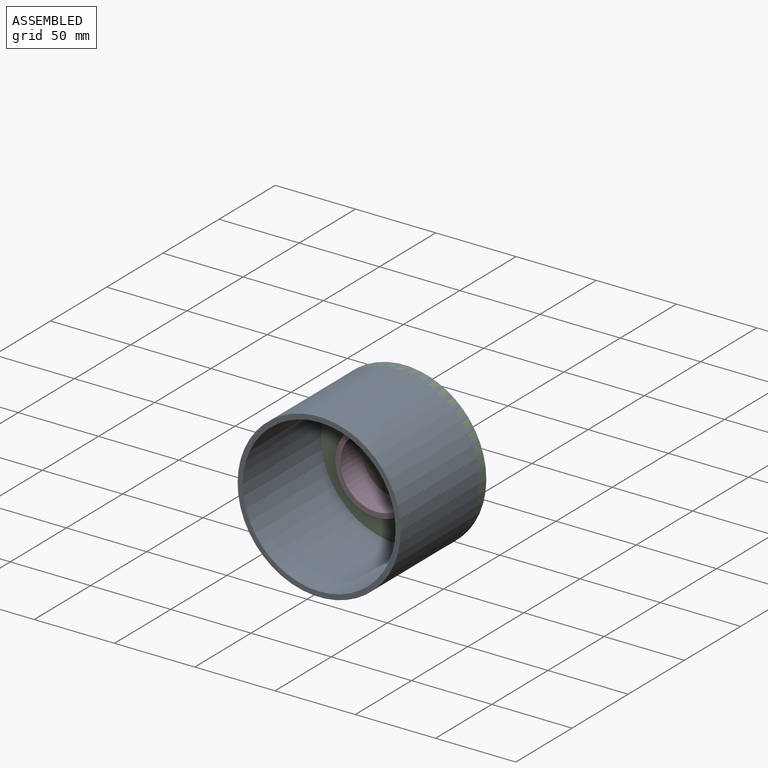
[diagram: assembled view]
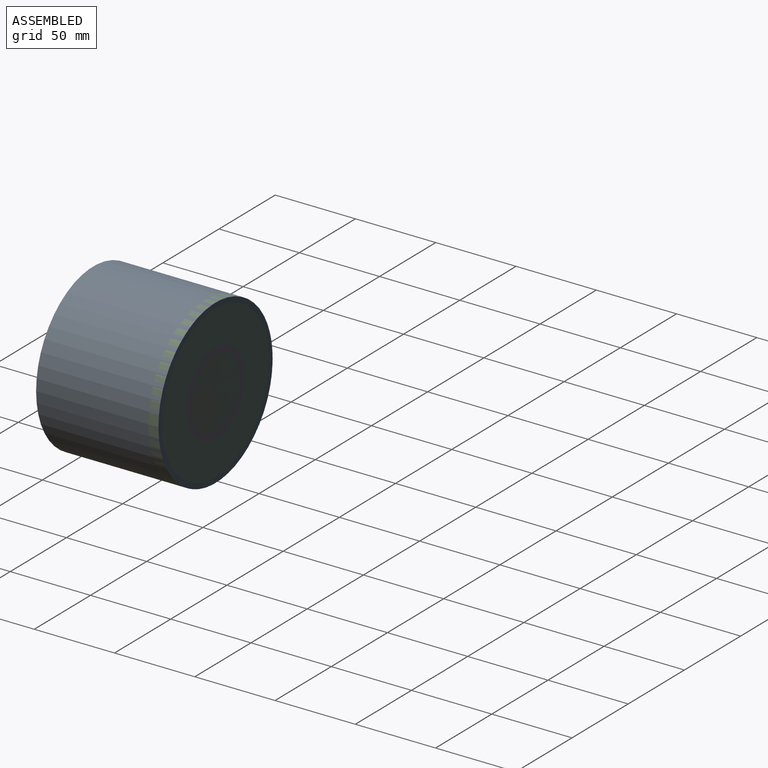
[diagram: assembled view, second angle]
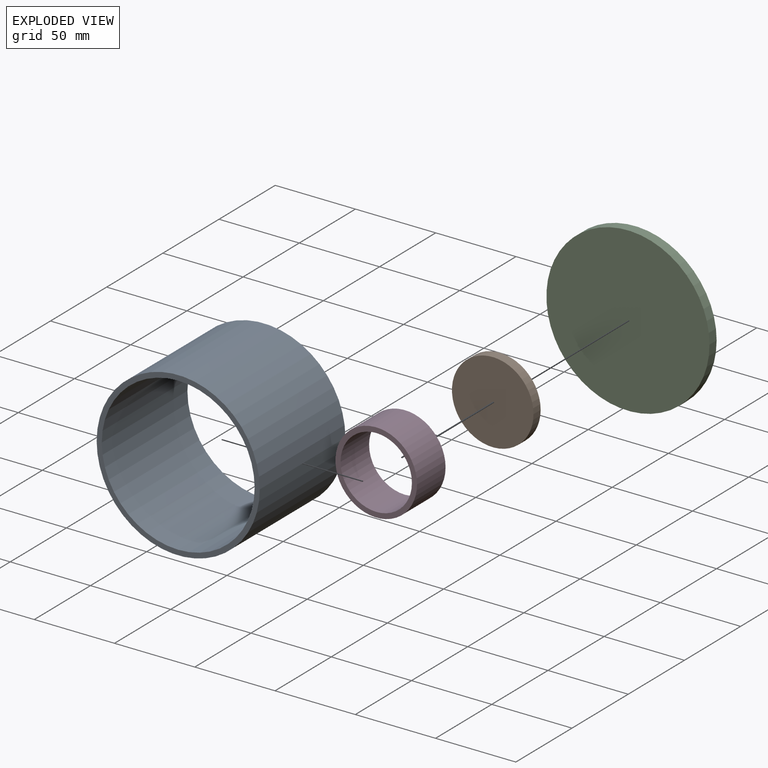
[diagram: exploded view]
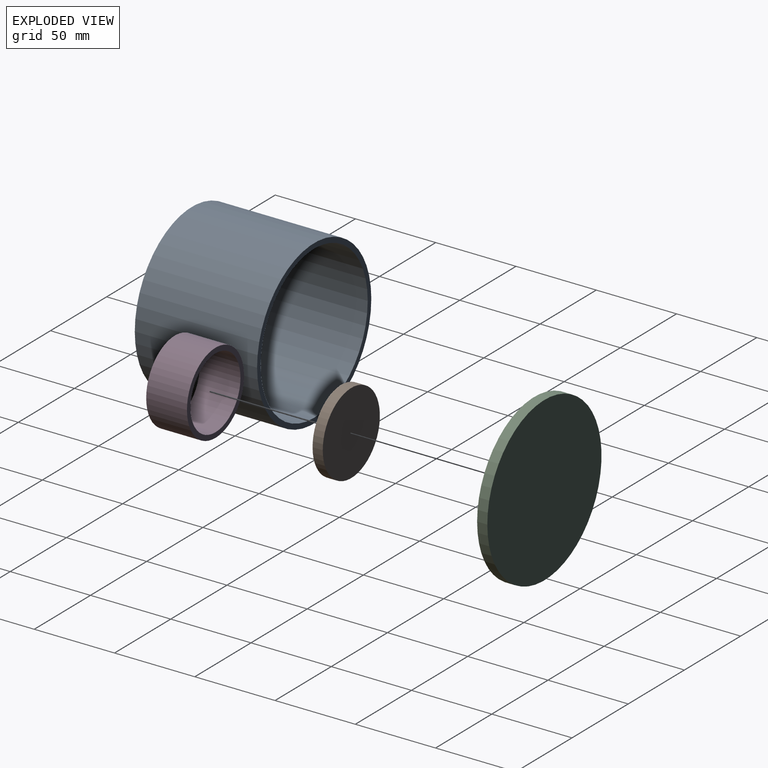
[diagram: exploded view, second angle]
ASSEMBLY  parts=4 mates=2
PART A: 4 faces, bbox 101.6x76.2x101.6 mm
  f0: cylinder r=47.62mm len=95.25mm, axis (0,1,0), area 22801.8mm2, adj f2,f3
  f1: cylinder r=50.8mm len=101.6mm, axis (0,1,0), area 24322mm2, adj f2,f3
  f2: plane 101.6x101.6mm, normal (0,-1,0), area 981.7mm2, adj f0,f1
  f3: plane 101.6x101.6mm, normal (0,1,0), area 981.7mm2, adj f0,f1
PART B: 3 faces, bbox 50.8x6.4x50.8 mm
  f0: cylinder r=25.4mm len=50.8mm, axis (0,-1,0), area 1013.4mm2, adj f1,f2
  f1: plane 50.8x50.8mm, normal (0,1,0), area 2026.8mm2, adj f0
  f2: plane 50.8x50.8mm, normal (0,-1,0), area 2026.8mm2, adj f0
PART C: 3 faces, bbox 101.6x6.4x101.6 mm
  f0: cylinder r=50.8mm len=101.6mm, axis (0,-1,0), area 2026.8mm2, adj f1,f2
  f1: plane 101.6x101.6mm, normal (0,1,0), area 8107.3mm2, adj f0
  f2: plane 101.6x101.6mm, normal (0,-1,0), area 8107.3mm2, adj f0
PART D: 4 faces, bbox 50.8x25.4x50.8 mm
  f0: cylinder r=22.23mm len=44.45mm, axis (0,1,0), area 3547mm2, adj f2,f3
  f1: cylinder r=25.4mm len=50.8mm, axis (0,1,0), area 4053.7mm2, adj f2,f3
  f2: plane 50.8x50.8mm, normal (0,-1,0), area 475mm2, adj f0,f1
  f3: plane 50.8x50.8mm, normal (0,1,0), area 475mm2, adj f0,f1
PLACE A t=(54.86,-272.52,-8.45)mm
PLACE B t=(-38.6,-278.87,-8.45)mm
PLACE C t=(54.86,-278.87,-8.45)mm
PLACE D t=(-38.6,-272.52,-8.45)mm
MATE fastened D.f0 <-> B.f0  axis (0,1,0) through (6.56,-272.52,-8.45)mm
MATE fastened A.f0 <-> C.f0  axis (0,1,0) through (6.56,-272.52,-8.45)mm
